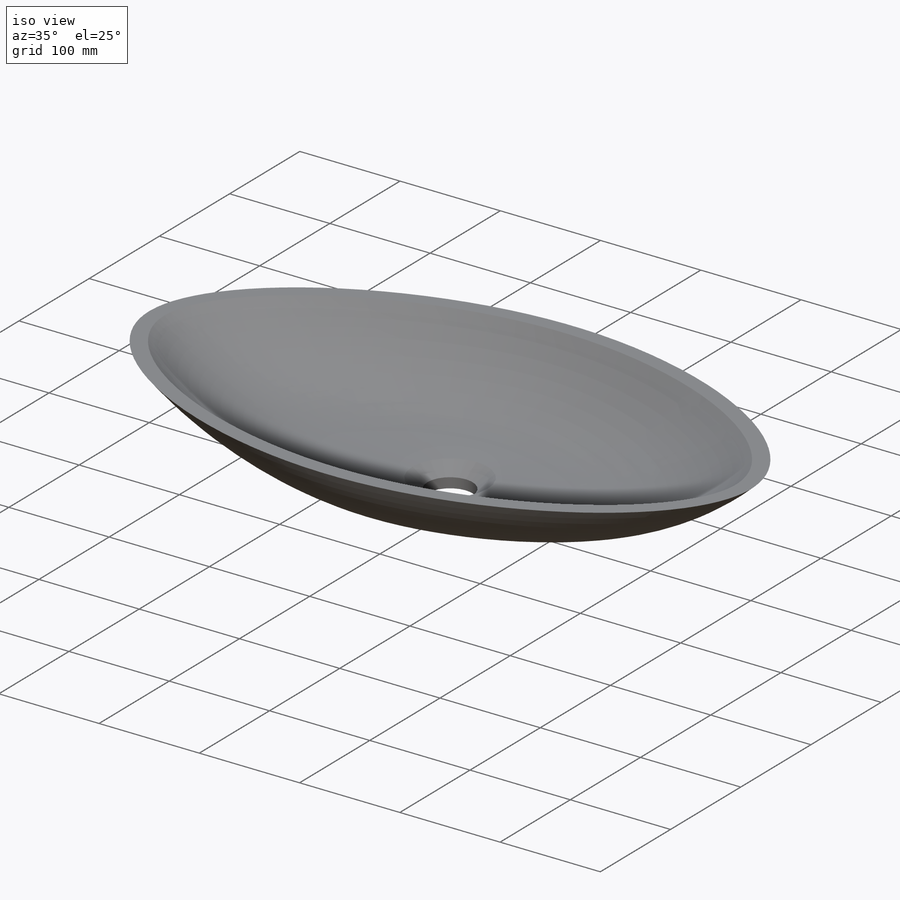
[diagram: iso view]
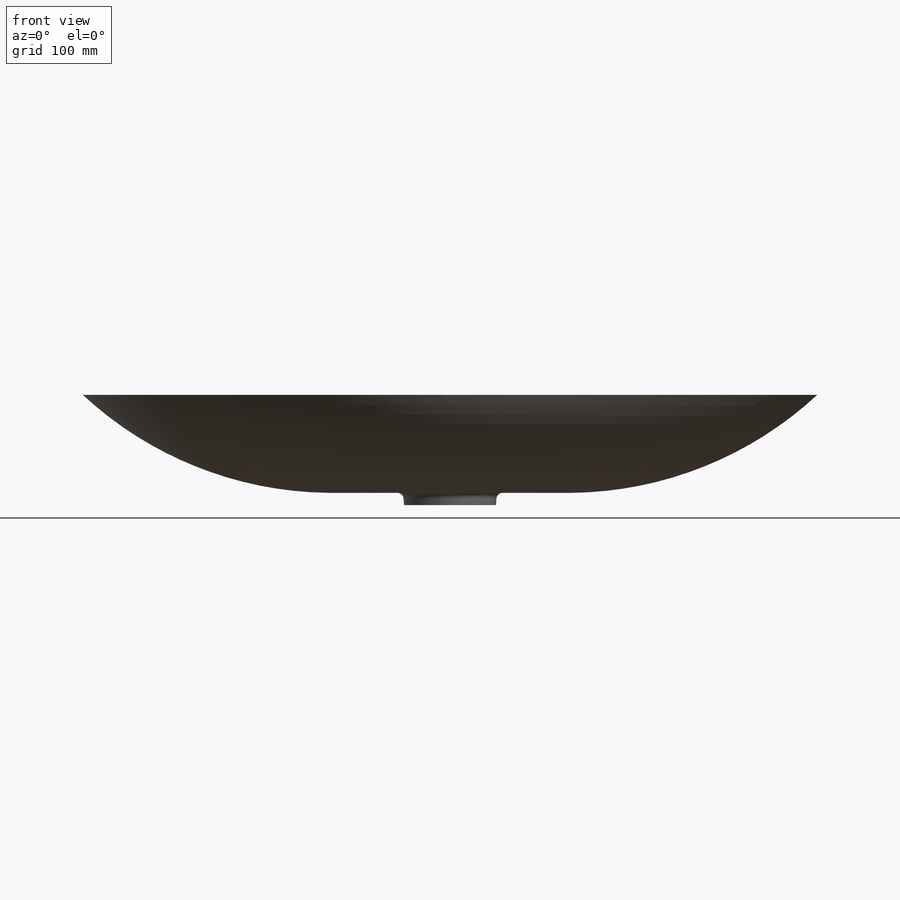
[diagram: front view]
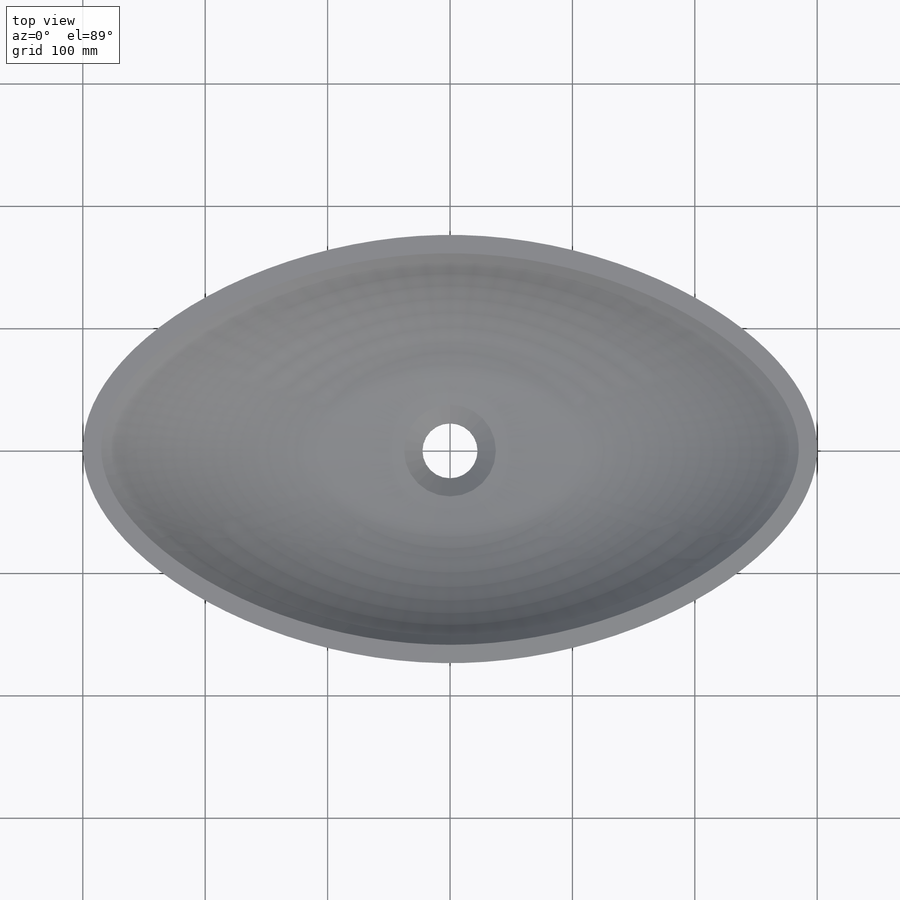
[diagram: top view]
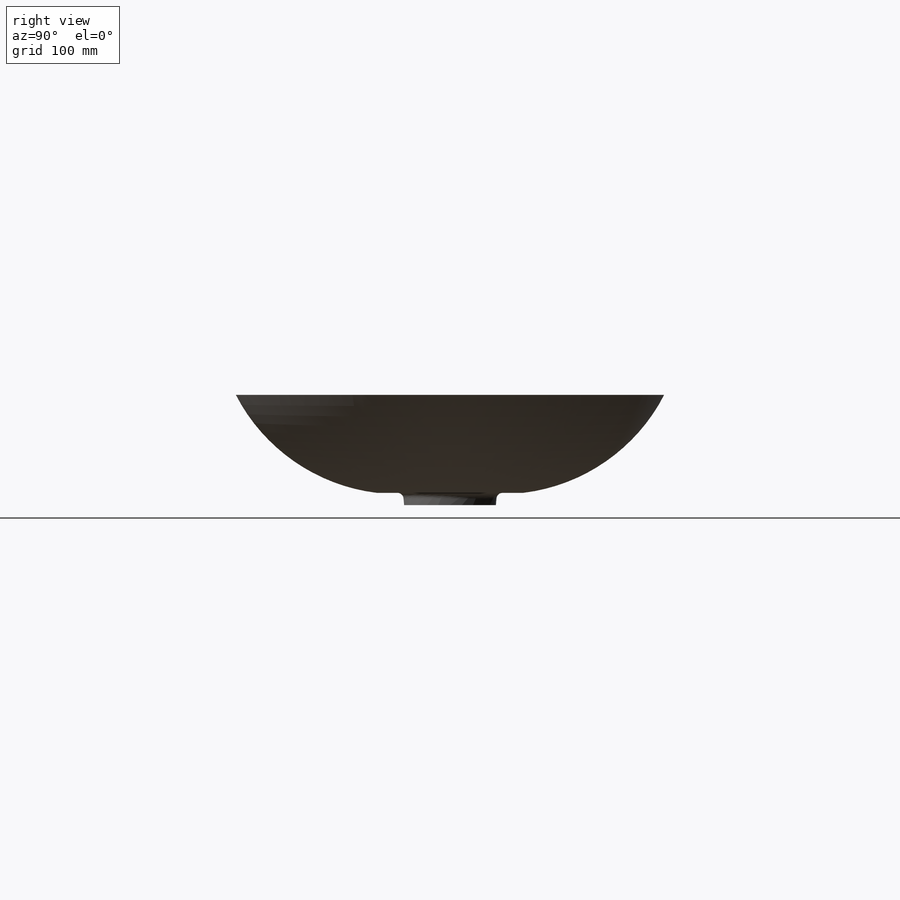
[diagram: right view]
SOLIDWORKS PART (.sldprt)
format: sldprt  version: not decoded by parser v0  size: 486,400 bytes
history: native  units: mm
features: sketch x13, plane x11, fillet x2, material x1, cut_extrude x1, extrude x1, chamfer x1 (+14 scaffold rows collapsed)
feature tree (44):
  scaffold x14  (default folders/planes/origin — collapsed)
  material  "材质 <未指定>"
  plane  "前视基准面"
  plane  "上视基准面"
  plane  "右视基准面"
  sketch  "草图1"  dims[D1=600.0mm D2=350.0mm D3=300.0mm D4=175.0mm]
  plane  "基准面1"  Offset=80mm
  sketch  "草图2"  dims[D1=200.0mm D2=120.0mm D3=60.0mm D4=100.0mm D5=50.0mm]
  plane  "基准面2"
  sketch  "草图3"  dims[D1=300.0mm]
  plane  "基准面3"
  sketch  "草图4"  dims[D1=150.0mm]
  sketch  "草图6"  dims[D1=15.0mm]
  plane  "基准面4"  Offset=65mm
  sketch  "草图7"  dims[c1.D1=15.0mm c1.D2=15.0mm c2.D1=15.0mm]
  plane  "基准面6"
  sketch  "草图8"  dims[D1=300.0mm]
  plane  "基准面7"
  sketch  "草图9"  dims[D1=150.0mm]
  plane  "基准面8"  Offset=5mm
  sketch  "草图10"  dims[D1=75.0mm]
  sketch  "草图11"  dims[D1=15.0mm D2=15.0mm]
  plane  "基准面9"
  sketch  "草图12"
  sketch  "草图13"  dims[D1=45.0mm]
  cut_extrude  "切除-拉伸1"  Depth=15mm
  fillet  "圆角1"  Radius=50mm
  sketch  "草图14"  dims[D1=75.0mm]
  extrude  "拉伸1"  Depth=10mm
  fillet  "圆角2"  Radius=5mm
  chamfer  "倒角1"  Distance=15mm
decode coverage: 17 of 18 modeling features carry decoded parameters
note: suppression state not decoded; provenance and decode notes live in map.json
